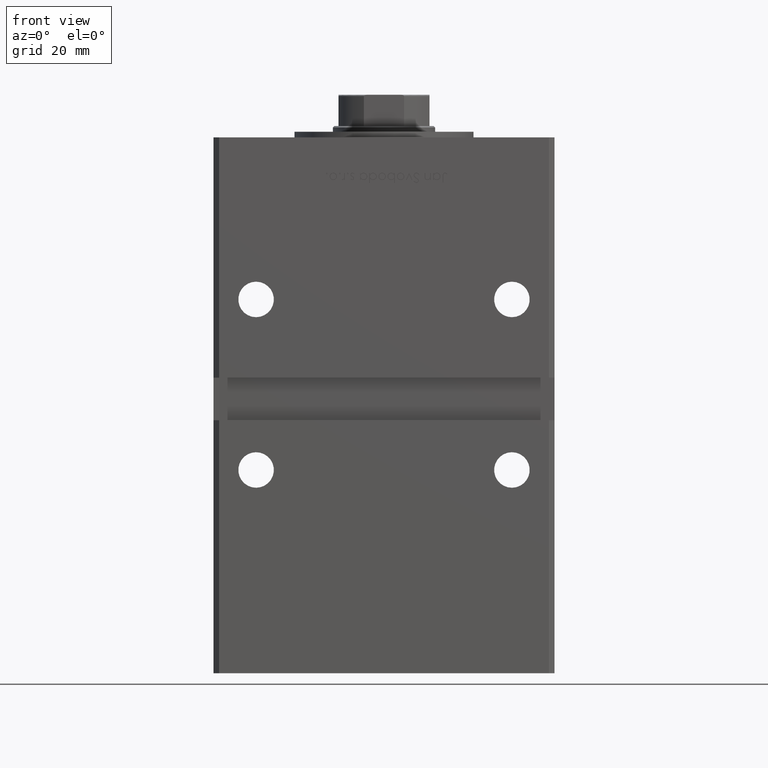
[diagram: clean part render]
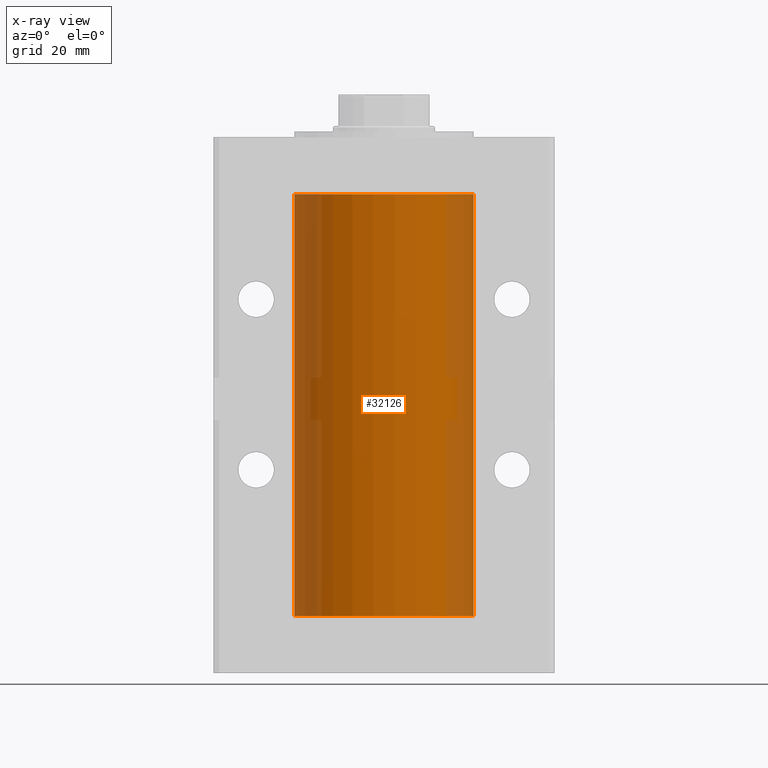
[diagram: x-ray — body ghosted, one internal face saturated and labeled with its STEP entity id]
A machine part, front view, then the same camera in x-ray: the body is ghosted and one INTERNAL B-rep face — a face not visible from any outside direction — is saturated and labeled: STEP entity #32126.
In plain terms, the highlighted cylindrical surface (partial cylindrical patch) has radius 31.5 mm, axis along (-0, -0, -1).
Its self-contained STEP definition (entity closure, byte-faithful):
#841 = VERTEX_POINT ( 'NONE', #35375 ) ;
#2219 = AXIS2_PLACEMENT_3D ( 'NONE', #52497, #24322, #49281 ) ;
#5281 = LINE ( 'NONE', #21651, #48271 ) ;
#7113 = VECTOR ( 'NONE', #47948, 1000.000000000000000 ) ;
#7174 = LINE ( 'NONE', #19250, #7113 ) ;
#8380 = ORIENTED_EDGE ( 'NONE', *, *, #33898, .F. ) ;
#11556 = EDGE_CURVE ( 'NONE', #841, #21444, #5281, .T. ) ;
#14681 = VERTEX_POINT ( 'NONE', #34269 ) ;
#15769 = VERTEX_POINT ( 'NONE', #41226 ) ;
#17718 = ORIENTED_EDGE ( 'NONE', *, *, #44151, .T. ) ;
#18951 = DIRECTION ( 'NONE',  ( -0.000000000000000000, -0.000000000000000000, -1.000000000000000000 ) ) ;
#19250 = CARTESIAN_POINT ( 'NONE',  ( -31.50000000000000000, 0.000000000000000000, 148.5000000000000000 ) ) ;
#19875 = CARTESIAN_POINT ( 'NONE',  ( 0.000000000000000000, 0.000000000000000000, 148.5000000000000000 ) ) ;
#21444 = VERTEX_POINT ( 'NONE', #31693 ) ;
#21651 = CARTESIAN_POINT ( 'NONE',  ( 31.50000000000000000, 3.857637417314162689E-15, 148.5000000000000000 ) ) ;
#24322 = DIRECTION ( 'NONE',  ( -0.000000000000000000, 0.000000000000000000, 1.000000000000000000 ) ) ;
#24527 = DIRECTION ( 'NONE',  ( -0.000000000000000000, -0.000000000000000000, -1.000000000000000000 ) ) ;
#26803 = ORIENTED_EDGE ( 'NONE', *, *, #11556, .T. ) ;
#26852 = ORIENTED_EDGE ( 'NONE', *, *, #48628, .F. ) ;
#31693 = CARTESIAN_POINT ( 'NONE',  ( 31.50000000000000000, 3.857637417314162689E-15, 0.000000000000000000 ) ) ;
#32126 = ADVANCED_FACE ( 'NONE', ( #40622 ), #48938, .F. ) ;
#33898 = EDGE_CURVE ( 'NONE', #14681, #15769, #7174, .T. ) ;
#34269 = CARTESIAN_POINT ( 'NONE',  ( -31.50000000000000000, 0.000000000000000000, 148.5000000000000000 ) ) ;
#35375 = CARTESIAN_POINT ( 'NONE',  ( 31.50000000000000000, 3.857637417314162689E-15, 148.5000000000000000 ) ) ;
#35801 = CARTESIAN_POINT ( 'NONE',  ( 0.000000000000000000, 0.000000000000000000, 148.5000000000000000 ) ) ;
#40622 = FACE_OUTER_BOUND ( 'NONE', #51526, .T. ) ;
#41226 = CARTESIAN_POINT ( 'NONE',  ( -31.50000000000000000, 0.000000000000000000, 0.000000000000000000 ) ) ;
#43754 = DIRECTION ( 'NONE',  ( -0.000000000000000000, 0.000000000000000000, 1.000000000000000000 ) ) ;
#44151 = EDGE_CURVE ( 'NONE', #14681, #841, #46650, .T. ) ;
#44749 = AXIS2_PLACEMENT_3D ( 'NONE', #35801, #24527, #48667 ) ;
#44978 = AXIS2_PLACEMENT_3D ( 'NONE', #19875, #43754, #52614 ) ;
#46650 = CIRCLE ( 'NONE', #44978, 31.50000000000000000 ) ;
#47948 = DIRECTION ( 'NONE',  ( -0.000000000000000000, -0.000000000000000000, -1.000000000000000000 ) ) ;
#48271 = VECTOR ( 'NONE', #18951, 1000.000000000000000 ) ;
#48506 = CIRCLE ( 'NONE', #2219, 31.50000000000000000 ) ;
#48628 = EDGE_CURVE ( 'NONE', #15769, #21444, #48506, .T. ) ;
#48667 = DIRECTION ( 'NONE',  ( -1.000000000000000000, 0.000000000000000000, 0.000000000000000000 ) ) ;
#48938 = CYLINDRICAL_SURFACE ( 'NONE', #44749, 31.50000000000000000 ) ;
#49281 = DIRECTION ( 'NONE',  ( 1.000000000000000000, 0.000000000000000000, 0.000000000000000000 ) ) ;
#51526 = EDGE_LOOP ( 'NONE', ( #17718, #26803, #26852, #8380 ) ) ;
#52497 = CARTESIAN_POINT ( 'NONE',  ( 0.000000000000000000, 0.000000000000000000, 0.000000000000000000 ) ) ;
#52614 = DIRECTION ( 'NONE',  ( 1.000000000000000000, 0.000000000000000000, 0.000000000000000000 ) ) ;